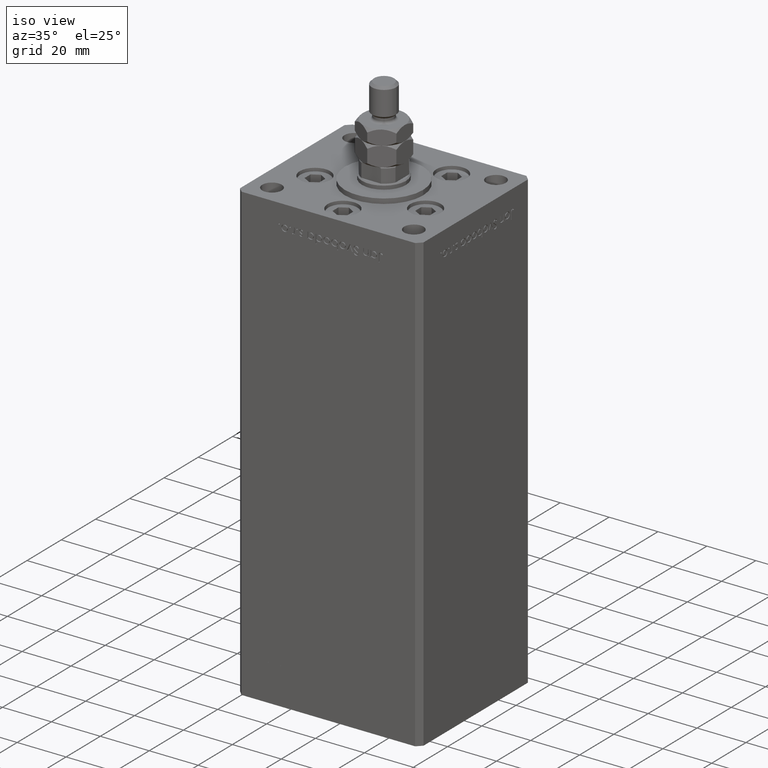
[diagram: clean part render]
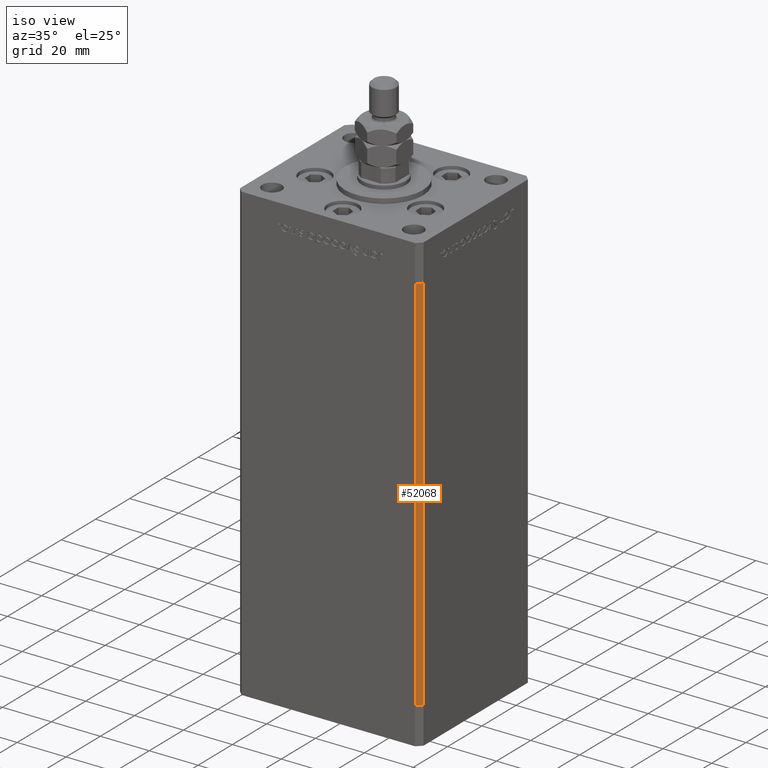
[diagram: same view with one face highlighted and labeled with its STEP entity id]
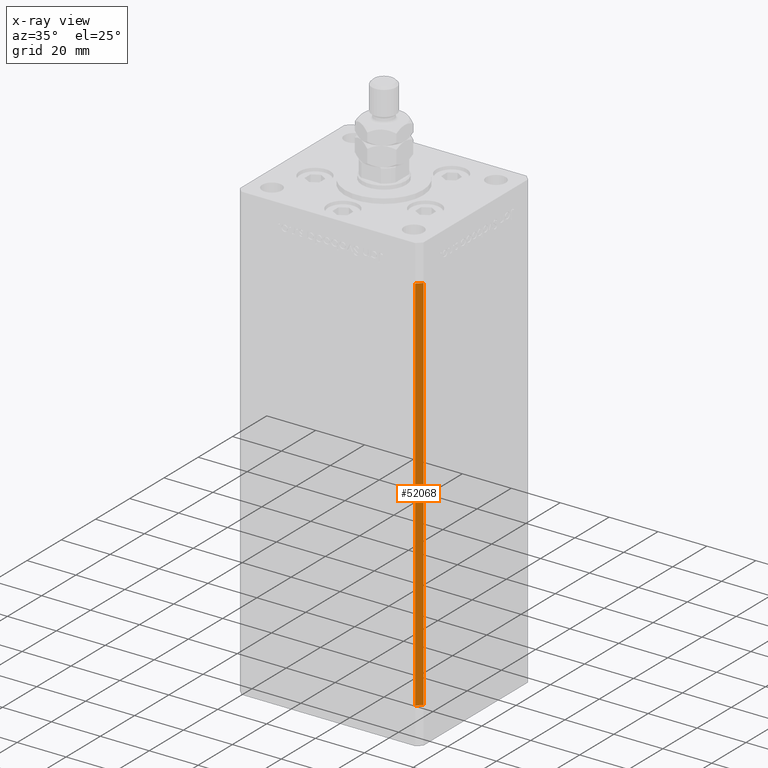
[diagram: x-ray of the same camera — body ghosted, the highlighted face saturated]
A machine part, iso view. The second image highlights one B-rep face of the part: STEP entity #52068.
The next image is the same camera in x-ray: the body ghosted, the highlighted face saturated — about 0% of this face is hidden behind the body in this view.
In plain terms, the highlighted planar face has unit normal (0.7071, -0.7071, 0).
Its self-contained STEP definition (entity closure, byte-faithful):
#661 = LINE ( 'NONE', #8307, #42570 ) ;
#704 = DIRECTION ( 'NONE',  ( -0.000000000000000000, -0.000000000000000000, -1.000000000000000000 ) ) ;
#3946 = VERTEX_POINT ( 'NONE', #52023 ) ;
#4195 = EDGE_CURVE ( 'NONE', #47644, #3946, #31054, .T. ) ;
#6615 = CARTESIAN_POINT ( 'NONE',  ( 37.49999999999999289, -30.50000000000000000, 156.0000000000000000 ) ) ;
#6847 = CARTESIAN_POINT ( 'NONE',  ( 37.49999999999999289, -30.50000000000000000, 156.0000000000000000 ) ) ;
#7583 = EDGE_CURVE ( 'NONE', #44952, #3946, #21657, .T. ) ;
#7821 = EDGE_CURVE ( 'NONE', #53689, #47644, #42762, .T. ) ;
#8113 = CARTESIAN_POINT ( 'NONE',  ( 35.49999999999999289, -32.50000000000000000, 156.0000000000000000 ) ) ;
#8226 = EDGE_LOOP ( 'NONE', ( #24420, #42303, #21021, #32492 ) ) ;
#8307 = CARTESIAN_POINT ( 'NONE',  ( 37.49999999999999289, -30.50000000000000000, 156.0000000000000000 ) ) ;
#9139 = CARTESIAN_POINT ( 'NONE',  ( 35.49999999999999289, -32.50000000000000000, 156.0000000000000000 ) ) ;
#13022 = AXIS2_PLACEMENT_3D ( 'NONE', #6847, #23444, #15287 ) ;
#13856 = VECTOR ( 'NONE', #30551, 1000.000000000000000 ) ;
#15287 = DIRECTION ( 'NONE',  ( 0.7071067811865474617, 0.7071067811865474617, 0.000000000000000000 ) ) ;
#17016 = CARTESIAN_POINT ( 'NONE',  ( 37.49999999999999289, -30.50000000000000000, 156.0000000000000000 ) ) ;
#21021 = ORIENTED_EDGE ( 'NONE', *, *, #49307, .T. ) ;
#21657 = LINE ( 'NONE', #9139, #30343 ) ;
#23444 = DIRECTION ( 'NONE',  ( 0.7071067811865475727, -0.7071067811865475727, 0.000000000000000000 ) ) ;
#24420 = ORIENTED_EDGE ( 'NONE', *, *, #4195, .F. ) ;
#30253 = DIRECTION ( 'NONE',  ( -0.7071067811865474617, -0.7071067811865474617, 0.000000000000000000 ) ) ;
#30343 = VECTOR ( 'NONE', #704, 1000.000000000000000 ) ;
#30551 = DIRECTION ( 'NONE',  ( -0.000000000000000000, -0.000000000000000000, -1.000000000000000000 ) ) ;
#31054 = LINE ( 'NONE', #50888, #43268 ) ;
#32492 = ORIENTED_EDGE ( 'NONE', *, *, #7583, .T. ) ;
#37360 = DIRECTION ( 'NONE',  ( -0.7071067811865474617, -0.7071067811865474617, 0.000000000000000000 ) ) ;
#39440 = PLANE ( 'NONE',  #13022 ) ;
#42303 = ORIENTED_EDGE ( 'NONE', *, *, #7821, .F. ) ;
#42570 = VECTOR ( 'NONE', #37360, 1000.000000000000114 ) ;
#42762 = LINE ( 'NONE', #6615, #13856 ) ;
#43209 = CARTESIAN_POINT ( 'NONE',  ( 37.49999999999999289, -30.50000000000000000, 0.000000000000000000 ) ) ;
#43268 = VECTOR ( 'NONE', #30253, 1000.000000000000114 ) ;
#44061 = FACE_OUTER_BOUND ( 'NONE', #8226, .T. ) ;
#44952 = VERTEX_POINT ( 'NONE', #8113 ) ;
#47644 = VERTEX_POINT ( 'NONE', #43209 ) ;
#49307 = EDGE_CURVE ( 'NONE', #53689, #44952, #661, .T. ) ;
#50888 = CARTESIAN_POINT ( 'NONE',  ( 37.49999999999999289, -30.50000000000000000, 0.000000000000000000 ) ) ;
#52023 = CARTESIAN_POINT ( 'NONE',  ( 35.49999999999999289, -32.50000000000000000, 0.000000000000000000 ) ) ;
#52068 = ADVANCED_FACE ( 'NONE', ( #44061 ), #39440, .T. ) ;
#53689 = VERTEX_POINT ( 'NONE', #17016 ) ;